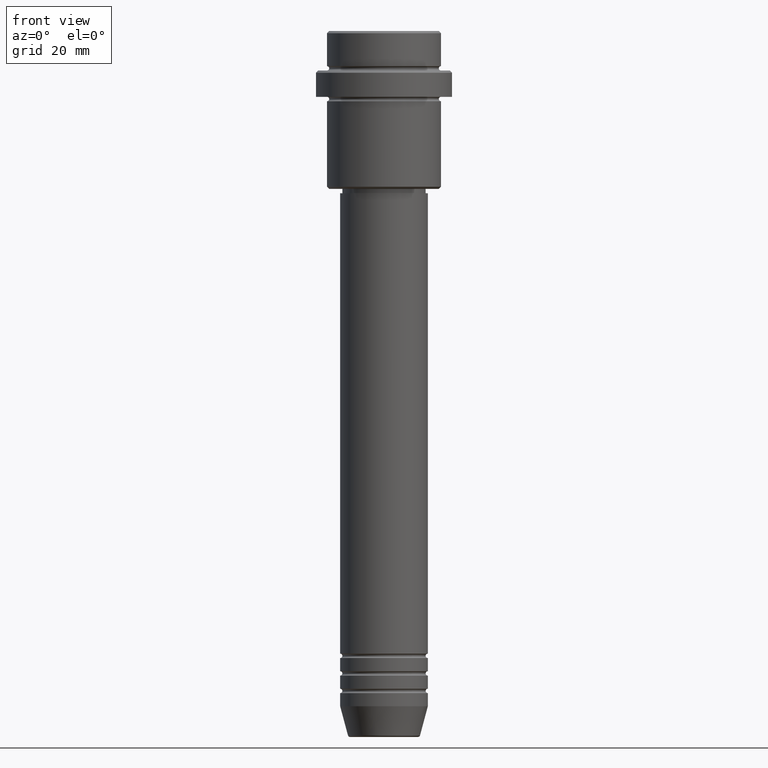
[diagram: clean part render]
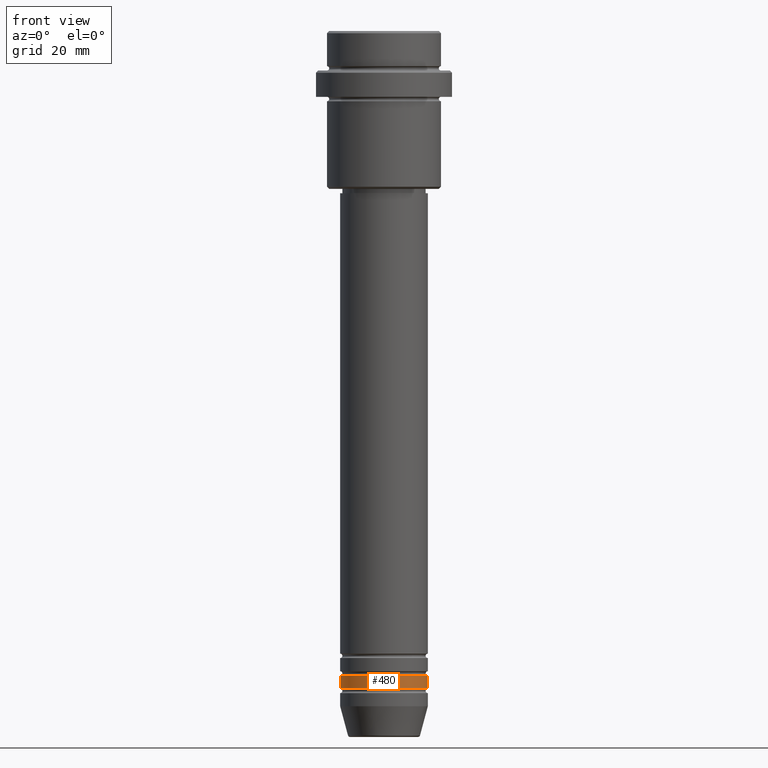
[diagram: same view with one face highlighted and labeled with its STEP entity id]
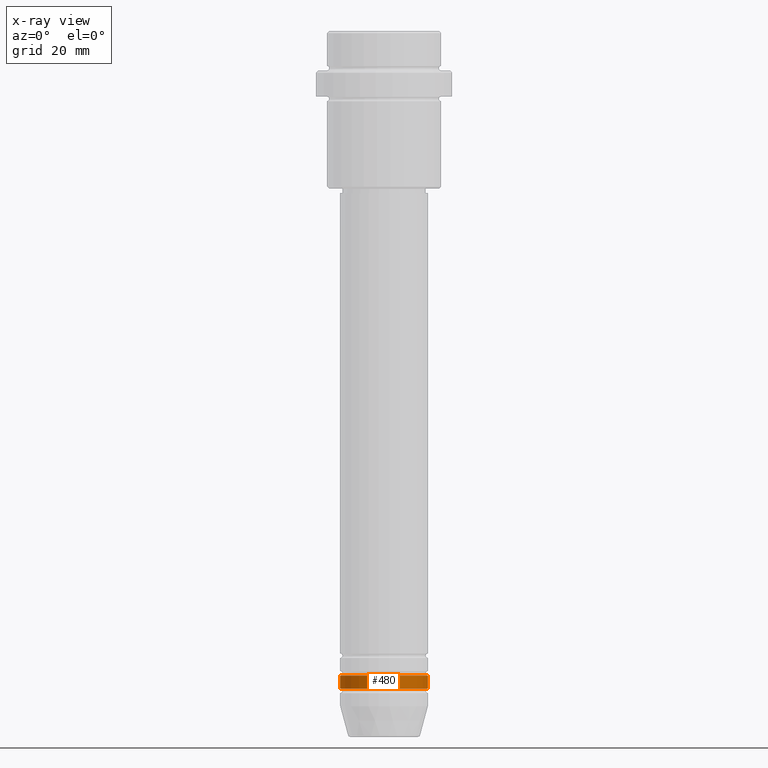
[diagram: x-ray of the same camera — body ghosted, the highlighted face saturated]
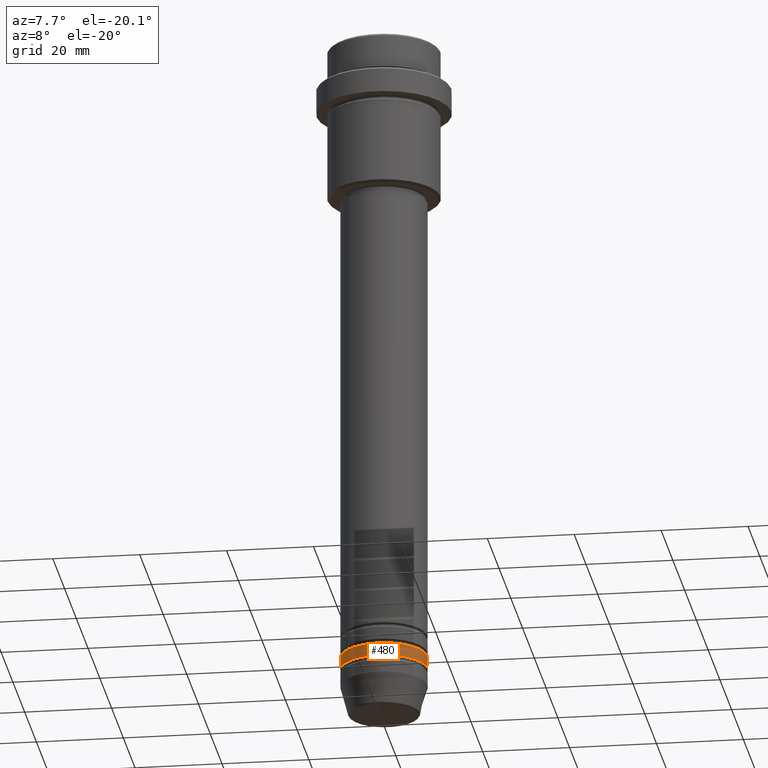
[diagram: same view with one face highlighted and labeled with its STEP entity id]
A machine part, front view. The second image highlights one B-rep face of the part: STEP entity #480.
The next image is the same camera in x-ray: the body ghosted, the highlighted face saturated — about 0% of this face is hidden behind the body in this view.
A second angle (auxiliary view) of the same face is appended — the face is thin or edge-on in the first view.
In plain terms, the highlighted cylindrical surface (partial cylindrical patch) has radius 10 mm, axis along (-0, -0, 1).
Its self-contained STEP definition (entity closure, byte-faithful):
#14 = CARTESIAN_POINT ( 'NONE',  ( 10.00000000000000000, 0.000000000000000000, -149.9999999999999147 ) ) ;
#87 = ORIENTED_EDGE ( 'NONE', *, *, #689, .T. ) ;
#96 = CARTESIAN_POINT ( 'NONE',  ( 10.00000000000000000, 0.000000000000000000, -146.9999999999999147 ) ) ;
#125 = CIRCLE ( 'NONE', #927, 10.00000000000000000 ) ;
#132 = ORIENTED_EDGE ( 'NONE', *, *, #1075, .F. ) ;
#173 = ORIENTED_EDGE ( 'NONE', *, *, #451, .T. ) ;
#210 = DIRECTION ( 'NONE',  ( -0.000000000000000000, -0.000000000000000000, 1.000000000000000000 ) ) ;
#255 = VERTEX_POINT ( 'NONE', #1331 ) ;
#267 = AXIS2_PLACEMENT_3D ( 'NONE', #556, #1066, #1304 ) ;
#306 = DIRECTION ( 'NONE',  ( 1.000000000000000000, 0.000000000000000000, 0.000000000000000000 ) ) ;
#369 = VERTEX_POINT ( 'NONE', #389 ) ;
#389 = CARTESIAN_POINT ( 'NONE',  ( -10.00000000000000000, 1.224646799147353256E-15, -149.9999999999999147 ) ) ;
#421 = DIRECTION ( 'NONE',  ( 1.000000000000000000, 0.000000000000000000, 0.000000000000000000 ) ) ;
#451 = EDGE_CURVE ( 'NONE', #369, #971, #1383, .T. ) ;
#452 = CARTESIAN_POINT ( 'NONE',  ( -10.00000000000000000, 1.224646799147353256E-15, 0.000000000000000000 ) ) ;
#473 = VERTEX_POINT ( 'NONE', #96 ) ;
#480 = ADVANCED_FACE ( 'NONE', ( #664 ), #1088, .T. ) ;
#527 = AXIS2_PLACEMENT_3D ( 'NONE', #1397, #1391, #421 ) ;
#556 = CARTESIAN_POINT ( 'NONE',  ( 0.000000000000000000, 0.000000000000000000, 0.000000000000000000 ) ) ;
#664 = FACE_OUTER_BOUND ( 'NONE', #856, .T. ) ;
#689 = EDGE_CURVE ( 'NONE', #971, #473, #1256, .T. ) ;
#721 = DIRECTION ( 'NONE',  ( -0.000000000000000000, -0.000000000000000000, 1.000000000000000000 ) ) ;
#789 = LINE ( 'NONE', #452, #1135 ) ;
#790 = EDGE_CURVE ( 'NONE', #255, #473, #125, .T. ) ;
#850 = ORIENTED_EDGE ( 'NONE', *, *, #790, .F. ) ;
#856 = EDGE_LOOP ( 'NONE', ( #132, #173, #87, #850 ) ) ;
#926 = CARTESIAN_POINT ( 'NONE',  ( 0.000000000000000000, 0.000000000000000000, -146.9999999999999147 ) ) ;
#927 = AXIS2_PLACEMENT_3D ( 'NONE', #926, #210, #306 ) ;
#971 = VERTEX_POINT ( 'NONE', #14 ) ;
#1066 = DIRECTION ( 'NONE',  ( -0.000000000000000000, -0.000000000000000000, 1.000000000000000000 ) ) ;
#1075 = EDGE_CURVE ( 'NONE', #369, #255, #789, .T. ) ;
#1088 = CYLINDRICAL_SURFACE ( 'NONE', #267, 10.00000000000000000 ) ;
#1135 = VECTOR ( 'NONE', #1217, 1000.000000000000000 ) ;
#1158 = CARTESIAN_POINT ( 'NONE',  ( 10.00000000000000000, 0.000000000000000000, 0.000000000000000000 ) ) ;
#1217 = DIRECTION ( 'NONE',  ( -0.000000000000000000, -0.000000000000000000, 1.000000000000000000 ) ) ;
#1256 = LINE ( 'NONE', #1158, #1387 ) ;
#1304 = DIRECTION ( 'NONE',  ( 1.000000000000000000, 0.000000000000000000, 0.000000000000000000 ) ) ;
#1331 = CARTESIAN_POINT ( 'NONE',  ( -10.00000000000000000, 1.224646799147353256E-15, -146.9999999999999147 ) ) ;
#1383 = CIRCLE ( 'NONE', #527, 10.00000000000000000 ) ;
#1387 = VECTOR ( 'NONE', #721, 1000.000000000000000 ) ;
#1391 = DIRECTION ( 'NONE',  ( -0.000000000000000000, -0.000000000000000000, 1.000000000000000000 ) ) ;
#1397 = CARTESIAN_POINT ( 'NONE',  ( 0.000000000000000000, 0.000000000000000000, -149.9999999999999147 ) ) ;